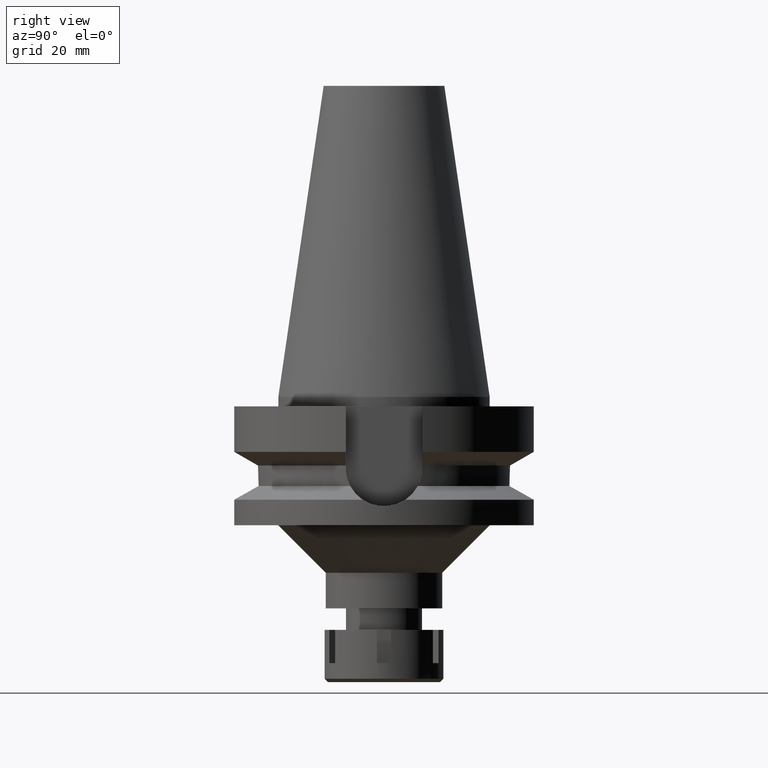
[diagram: clean part render]
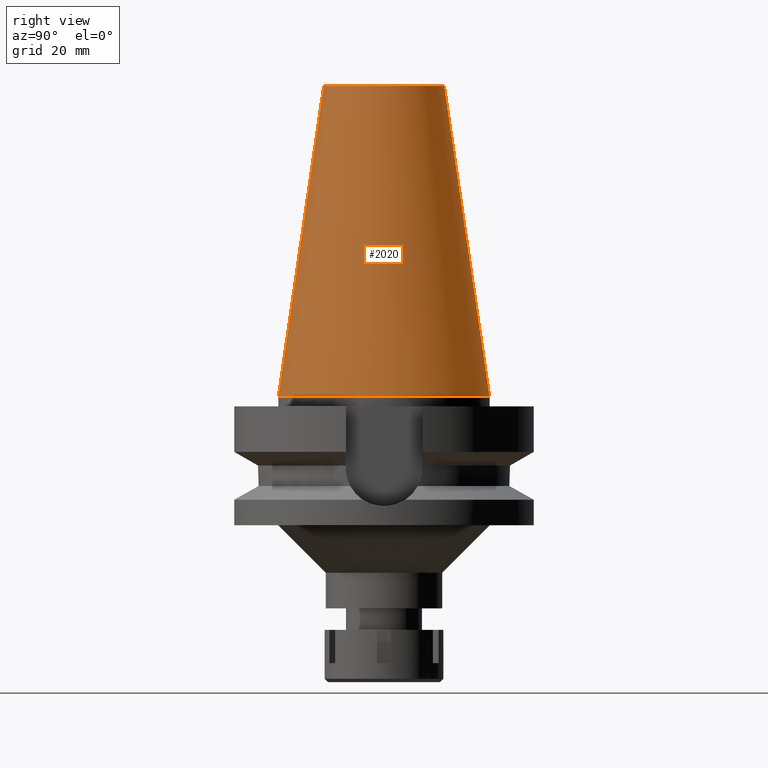
[diagram: same view with one face highlighted and labeled with its STEP entity id]
A machine part, right view. The second image highlights one B-rep face of the part: STEP entity #2020.
In plain terms, the highlighted conical surface has half-angle 8.297 deg.
Its self-contained STEP definition (entity closure, byte-faithful):
#99 = CIRCLE ( 'NONE', #2345, 22.22500000000000142 ) ;
#158 = CARTESIAN_POINT ( 'NONE',  ( 0.0000000000000000000, -22.22500000000000142, 4.263256414560999963E-14 ) ) ;
#356 = ORIENTED_EDGE ( 'NONE', *, *, #2266, .T. ) ;
#431 = VERTEX_POINT ( 'NONE', #465 ) ;
#465 = CARTESIAN_POINT ( 'NONE',  ( 0.0000000000000000000, 22.22500000000000142, 4.263256414560999963E-14 ) ) ;
#567 = DIRECTION ( 'NONE',  ( 0.0000000000000000000, 0.0000000000000000000, -1.000000000000000000 ) ) ;
#694 = EDGE_CURVE ( 'NONE', #1892, #2274, #950, .T. ) ;
#819 = CARTESIAN_POINT ( 'NONE',  ( 0.0000000000000000000, 1.625106302469000024E-14, 32.70000000000000284 ) ) ;
#950 = CIRCLE ( 'NONE', #3144, 12.68766899429999917 ) ;
#1014 = EDGE_LOOP ( 'NONE', ( #3321, #356, #2003, #2168 ) ) ;
#1025 = DIRECTION ( 'NONE',  ( 0.0000000000000000000, 1.000000000000000000, 0.0000000000000000000 ) ) ;
#1116 = CARTESIAN_POINT ( 'NONE',  ( 0.0000000000000000000, -12.68766899429999917, 65.40000000000000568 ) ) ;
#1460 = LINE ( 'NONE', #1116, #2218 ) ;
#1663 = DIRECTION ( 'NONE',  ( 0.0000000000000000000, -1.000000000000000000, 0.0000000000000000000 ) ) ;
#1668 = VECTOR ( 'NONE', #1918, 1000.000000000000114 ) ;
#1700 = AXIS2_PLACEMENT_3D ( 'NONE', #819, #567, #1663 ) ;
#1738 = DIRECTION ( 'NONE',  ( 0.0000000000000000000, -0.1443043893539925626, -0.9895333461855498891 ) ) ;
#1892 = VERTEX_POINT ( 'NONE', #2885 ) ;
#1918 = DIRECTION ( 'NONE',  ( 0.0000000000000000000, 0.1443043893539925626, -0.9895333461855498891 ) ) ;
#1934 = CARTESIAN_POINT ( 'NONE',  ( 0.0000000000000000000, 12.68766899429999917, 65.40000000000000568 ) ) ;
#2003 = ORIENTED_EDGE ( 'NONE', *, *, #2466, .F. ) ;
#2007 = DIRECTION ( 'NONE',  ( 0.0000000000000000000, 1.000000000000000000, 0.0000000000000000000 ) ) ;
#2020 = ADVANCED_FACE ( 'NONE', ( #2213 ), #3379, .T. ) ;
#2168 = ORIENTED_EDGE ( 'NONE', *, *, #3016, .F. ) ;
#2213 = FACE_OUTER_BOUND ( 'NONE', #1014, .T. ) ;
#2218 = VECTOR ( 'NONE', #1738, 1000.000000000000114 ) ;
#2245 = CARTESIAN_POINT ( 'NONE',  ( 0.0000000000000000000, -12.68766899429999917, 65.40000000000000568 ) ) ;
#2266 = EDGE_CURVE ( 'NONE', #2274, #3390, #1460, .T. ) ;
#2274 = VERTEX_POINT ( 'NONE', #2245 ) ;
#2283 = CARTESIAN_POINT ( 'NONE',  ( 0.0000000000000000000, 1.625106302469000024E-14, 65.40000000000000568 ) ) ;
#2345 = AXIS2_PLACEMENT_3D ( 'NONE', #2471, #2408, #1025 ) ;
#2408 = DIRECTION ( 'NONE',  ( 0.0000000000000000000, 0.0000000000000000000, -1.000000000000000000 ) ) ;
#2466 = EDGE_CURVE ( 'NONE', #431, #3390, #99, .T. ) ;
#2471 = CARTESIAN_POINT ( 'NONE',  ( 0.0000000000000000000, 1.625106302469000024E-14, 2.842170943039999687E-14 ) ) ;
#2885 = CARTESIAN_POINT ( 'NONE',  ( 0.0000000000000000000, 12.68766899429999917, 65.40000000000000568 ) ) ;
#3016 = EDGE_CURVE ( 'NONE', #1892, #431, #3531, .T. ) ;
#3144 = AXIS2_PLACEMENT_3D ( 'NONE', #2283, #3369, #2007 ) ;
#3321 = ORIENTED_EDGE ( 'NONE', *, *, #694, .T. ) ;
#3369 = DIRECTION ( 'NONE',  ( 0.0000000000000000000, 0.0000000000000000000, -1.000000000000000000 ) ) ;
#3379 = CONICAL_SURFACE ( 'NONE', #1700, 17.45633449714999941, 0.1448099680379422438 ) ;
#3390 = VERTEX_POINT ( 'NONE', #158 ) ;
#3531 = LINE ( 'NONE', #1934, #1668 ) ;